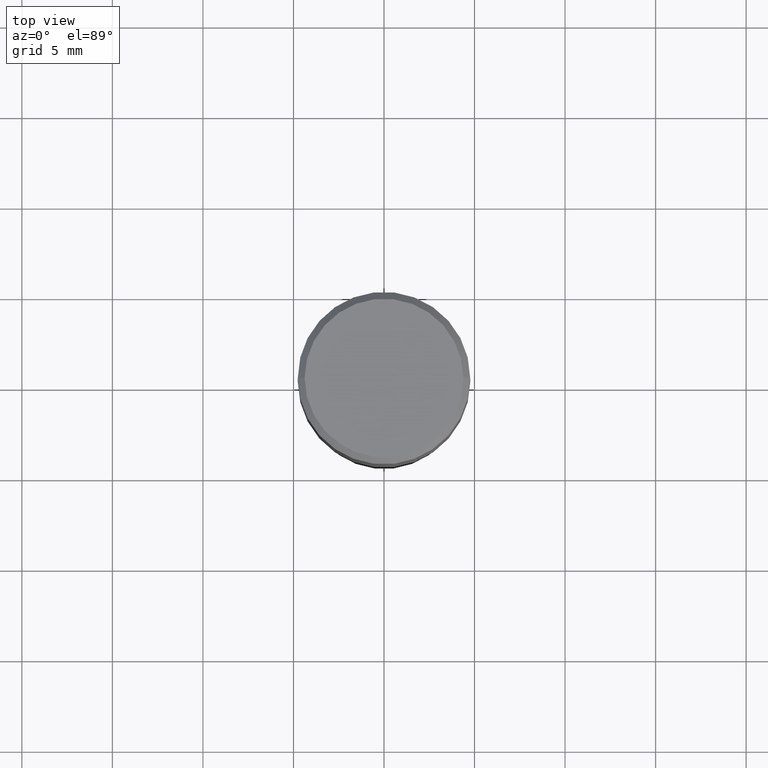
[diagram: clean part render]
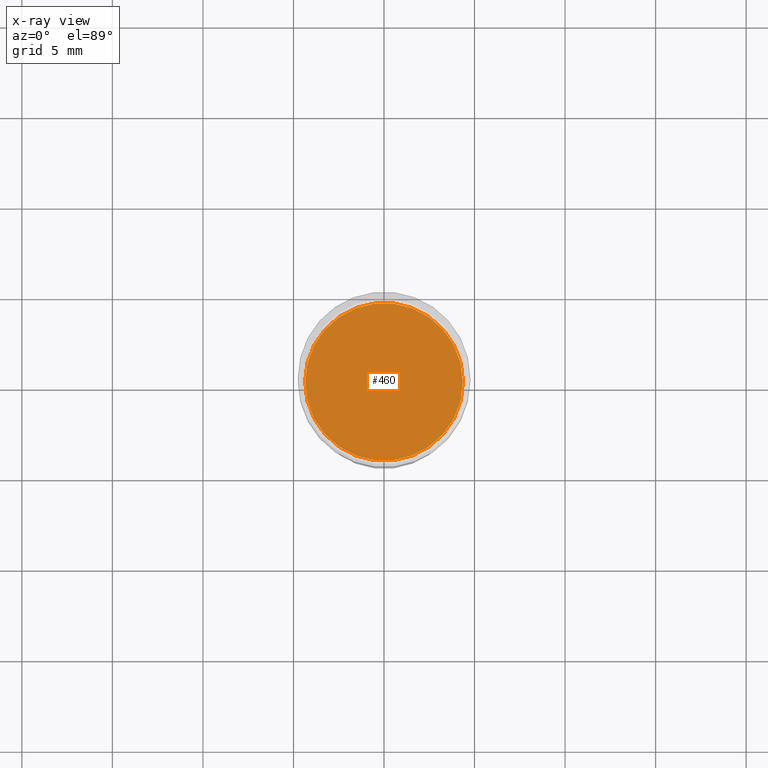
[diagram: x-ray — body ghosted, one internal face saturated and labeled with its STEP entity id]
A machine part, top view, then the same camera in x-ray: the body is ghosted and one INTERNAL B-rep face — a face not visible from any outside direction — is saturated and labeled: STEP entity #460.
In plain terms, the highlighted planar face has unit normal (-0, 0, 1).
Its self-contained STEP definition (entity closure, byte-faithful):
#2 = EDGE_LOOP ( 'NONE', ( #32, #310 ) ) ;
#32 = ORIENTED_EDGE ( 'NONE', *, *, #164, .F. ) ;
#56 = CARTESIAN_POINT ( 'NONE',  ( 0.1713999999999999690, -2.942620472376999223E-15, -0.5000000000000001110 ) ) ;
#94 = VERTEX_POINT ( 'NONE', #251 ) ;
#106 = AXIS2_PLACEMENT_3D ( 'NONE', #324, #165, #368 ) ;
#142 = AXIS2_PLACEMENT_3D ( 'NONE', #384, #243, #180 ) ;
#164 = EDGE_CURVE ( 'NONE', #388, #94, #445, .T. ) ;
#165 = DIRECTION ( 'NONE',  ( -2.445468806185136597E-29, 3.491481338843145583E-15, 1.000000000000000000 ) ) ;
#180 = DIRECTION ( 'NONE',  ( 1.000000000000000000, -6.982962677686265922E-15, 4.876176775795935793E-29 ) ) ;
#243 = DIRECTION ( 'NONE',  ( -2.438088387897960049E-29, 3.491481338843145188E-15, 1.000000000000000000 ) ) ;
#251 = CARTESIAN_POINT ( 'NONE',  ( -0.1713999999999999690, -5.252211931546505847E-16, -0.5000000000000001110 ) ) ;
#263 = DIRECTION ( 'NONE',  ( 1.000000000000000000, -6.982962677686266711E-15, 0.000000000000000000 ) ) ;
#310 = ORIENTED_EDGE ( 'NONE', *, *, #351, .F. ) ;
#324 = CARTESIAN_POINT ( 'NONE',  ( 1.222734403092568719E-29, -1.745740669421573186E-15, -0.5000000000000001110 ) ) ;
#342 = DIRECTION ( 'NONE',  ( -2.445468806185136597E-29, 3.491481338843145583E-15, 1.000000000000000000 ) ) ;
#348 = FACE_OUTER_BOUND ( 'NONE', #2, .T. ) ;
#351 = EDGE_CURVE ( 'NONE', #94, #388, #413, .T. ) ;
#368 = DIRECTION ( 'NONE',  ( 1.000000000000000000, -6.982962677686266711E-15, 0.000000000000000000 ) ) ;
#381 = CARTESIAN_POINT ( 'NONE',  ( 1.222734403092568719E-29, -1.745740669421573186E-15, -0.5000000000000001110 ) ) ;
#384 = CARTESIAN_POINT ( 'NONE',  ( 1.222734403092568719E-29, -1.745740669421573186E-15, -0.5000000000000001110 ) ) ;
#388 = VERTEX_POINT ( 'NONE', #56 ) ;
#406 = AXIS2_PLACEMENT_3D ( 'NONE', #381, #342, #263 ) ;
#413 = CIRCLE ( 'NONE', #406, 0.1713999999999999690 ) ;
#445 = CIRCLE ( 'NONE', #106, 0.1713999999999999690 ) ;
#456 = PLANE ( 'NONE',  #142 ) ;
#460 = ADVANCED_FACE ( 'NONE', ( #348 ), #456, .F. ) ;